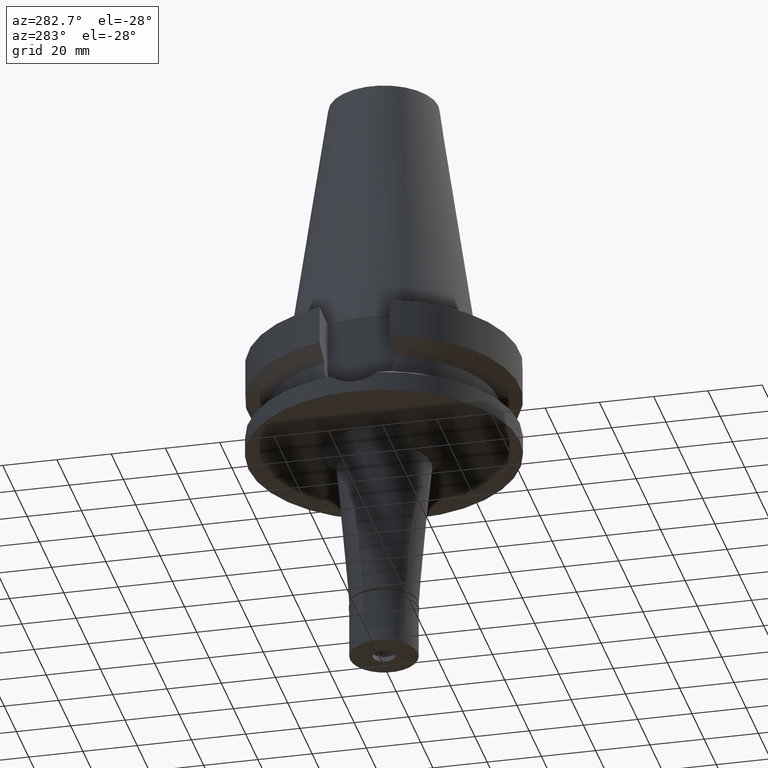
[diagram: clean part render]
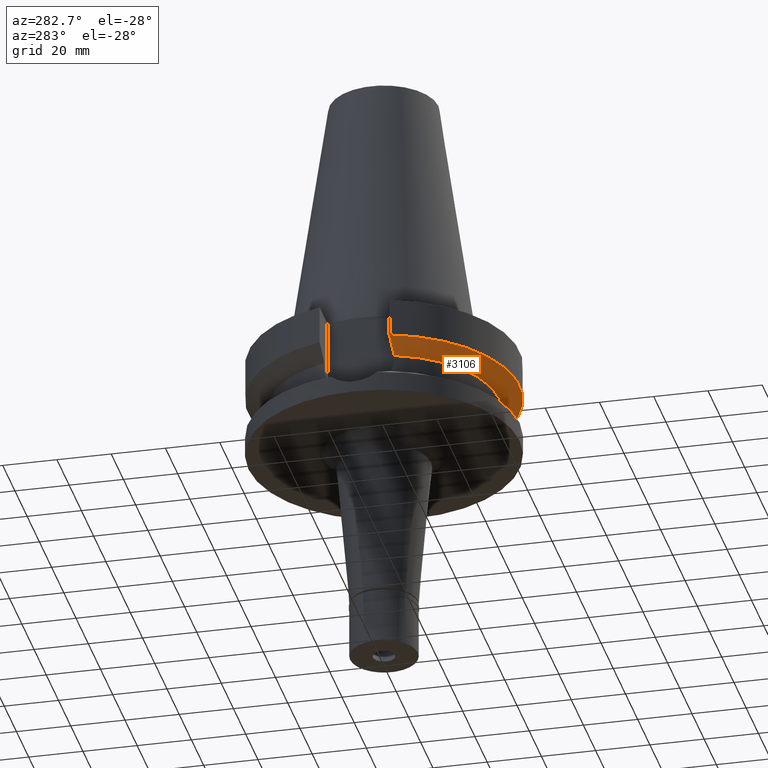
[diagram: same view with one face highlighted and labeled with its STEP entity id]
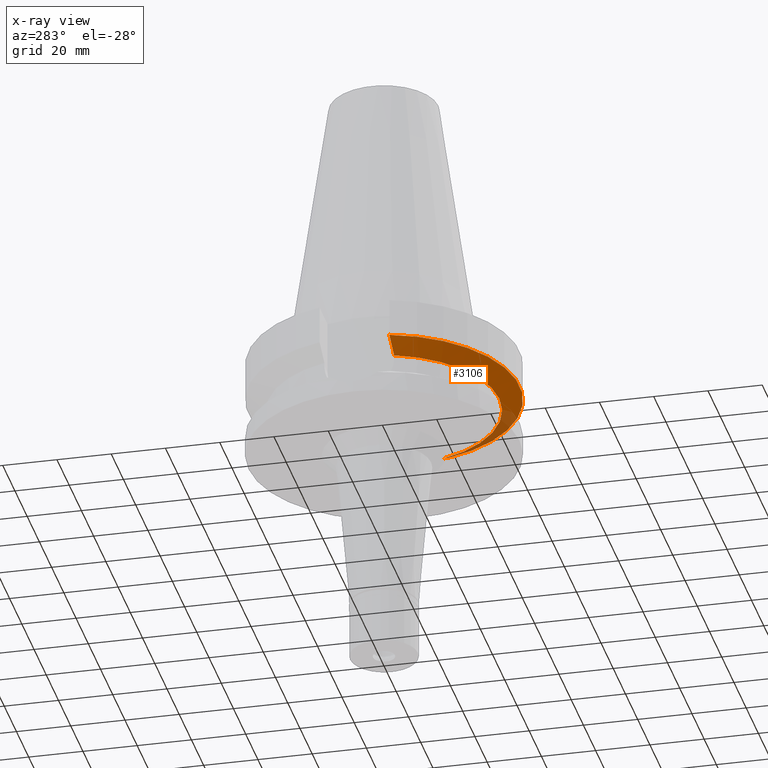
[diagram: x-ray of the same camera — body ghosted, the highlighted face saturated]
A machine part, auxiliary view. The second image highlights one B-rep face of the part: STEP entity #3106.
The next image is the same camera in x-ray: the body ghosted, the highlighted face saturated — about 13% of this face is hidden behind the body in this view.
In plain terms, the highlighted conical surface has half-angle 60 deg.
Its self-contained STEP definition (entity closure, byte-faithful):
#28 = VERTEX_POINT ( 'NONE', #1005 ) ;
#35 = FACE_OUTER_BOUND ( 'NONE', #2590, .T. ) ;
#297 = DIRECTION ( 'NONE',  ( 0.0000000000000000000, -1.000000000000000000, 0.0000000000000000000 ) ) ;
#351 = ORIENTED_EDGE ( 'NONE', *, *, #2950, .T. ) ;
#379 = VERTEX_POINT ( 'NONE', #2995 ) ;
#387 = DIRECTION ( 'NONE',  ( 0.9531960443486575674, -0.3023529411764863672, 0.0000000000000000000 ) ) ;
#587 = DIRECTION ( 'NONE',  ( 0.0000000000000000000, 0.0000000000000000000, 1.000000000000000000 ) ) ;
#654 = CARTESIAN_POINT ( 'NONE',  ( 42.90862809854358773, -12.84999309595930228, -18.67324601598956590 ) ) ;
#864 = ORIENTED_EDGE ( 'NONE', *, *, #2811, .F. ) ;
#1005 = CARTESIAN_POINT ( 'NONE',  ( 40.51083188481999997, -12.84999999999999964, -19.99281925464999787 ) ) ;
#1081 = CARTESIAN_POINT ( 'NONE',  ( 0.0000000000000000000, 1.006319759053999930E-14, -15.66269223573000069 ) ) ;
#1144 = CARTESIAN_POINT ( 'NONE',  ( 48.32057015392000210, -12.84999999999999964, -15.66269223573000069 ) ) ;
#1163 = B_SPLINE_CURVE_WITH_KNOTS ( 'NONE', 3,
 ( #1224, #1509, #1477, #1290 ),
 .UNSPECIFIED., .F., .F.,
 ( 4, 4 ),
 ( 0.0000000000000000000, 1.000000000000000000 ),
 .UNSPECIFIED. ) ;
#1224 = CARTESIAN_POINT ( 'NONE',  ( -48.32056912864999987, -12.85000385539999890, -15.66265769939000130 ) ) ;
#1290 = CARTESIAN_POINT ( 'NONE',  ( -40.51083297709000419, -12.84999655650999806, -19.99284568102999771 ) ) ;
#1352 = EDGE_CURVE ( 'NONE', #379, #2222, #1163, .T. ) ;
#1406 = CIRCLE ( 'NONE', #3111, 50.00000000000000000 ) ;
#1424 = CARTESIAN_POINT ( 'NONE',  ( 45.51179415067768730, -12.85000770631643618, -17.22986974380595981 ) ) ;
#1477 = CARTESIAN_POINT ( 'NONE',  ( -42.90862465512552859, -12.84999310601785005, -18.67324794008826672 ) ) ;
#1507 = CONICAL_SURFACE ( 'NONE', #2236, 46.25000000000000000, 1.047197551196400456 ) ;
#1509 = CARTESIAN_POINT ( 'NONE',  ( -45.51179878679330670, -12.85000770615481791, -17.22986718688659380 ) ) ;
#1833 = VERTEX_POINT ( 'NONE', #2910 ) ;
#1875 = ORIENTED_EDGE ( 'NONE', *, *, #1352, .T. ) ;
#1899 = AXIS2_PLACEMENT_3D ( 'NONE', #2307, #2605, #387 ) ;
#1984 = EDGE_CURVE ( 'NONE', #379, #1833, #1406, .T. ) ;
#2205 = DIRECTION ( 'NONE',  ( 0.0000000000000000000, 0.0000000000000000000, 1.000000000000000000 ) ) ;
#2214 = CIRCLE ( 'NONE', #1899, 42.50000000000002132 ) ;
#2222 = VERTEX_POINT ( 'NONE', #2876 ) ;
#2236 = AXIS2_PLACEMENT_3D ( 'NONE', #2717, #2205, #3179 ) ;
#2271 = B_SPLINE_CURVE_WITH_KNOTS ( 'NONE', 3,
 ( #2898, #654, #1424, #1144 ),
 .UNSPECIFIED., .F., .F.,
 ( 4, 4 ),
 ( 0.0000000000000000000, 1.000000000000000000 ),
 .UNSPECIFIED. ) ;
#2307 = CARTESIAN_POINT ( 'NONE',  ( 0.0000000000000000000, 1.006319759053999930E-14, -19.99281925464999787 ) ) ;
#2479 = ORIENTED_EDGE ( 'NONE', *, *, #1984, .F. ) ;
#2590 = EDGE_LOOP ( 'NONE', ( #1875, #864, #351, #2479 ) ) ;
#2605 = DIRECTION ( 'NONE',  ( 0.0000000000000000000, 0.0000000000000000000, -1.000000000000000000 ) ) ;
#2717 = CARTESIAN_POINT ( 'NONE',  ( 0.0000000000000000000, 1.006319759053999930E-14, -17.82775574519000017 ) ) ;
#2811 = EDGE_CURVE ( 'NONE', #28, #2222, #2214, .T. ) ;
#2876 = CARTESIAN_POINT ( 'NONE',  ( -40.51083297709000419, -12.84999655650999806, -19.99284568102999771 ) ) ;
#2898 = CARTESIAN_POINT ( 'NONE',  ( 40.51083188481999997, -12.84999999999999964, -19.99281925464999787 ) ) ;
#2910 = CARTESIAN_POINT ( 'NONE',  ( 48.32057015392000210, -12.84999999999999964, -15.66269223573000069 ) ) ;
#2950 = EDGE_CURVE ( 'NONE', #28, #1833, #2271, .T. ) ;
#2995 = CARTESIAN_POINT ( 'NONE',  ( -48.32056912864999987, -12.85000385539999890, -15.66265769939000130 ) ) ;
#3106 = ADVANCED_FACE ( 'NONE', ( #35 ), #1507, .T. ) ;
#3111 = AXIS2_PLACEMENT_3D ( 'NONE', #1081, #587, #297 ) ;
#3179 = DIRECTION ( 'NONE',  ( 0.0000000000000000000, 1.000000000000000000, 0.0000000000000000000 ) ) ;